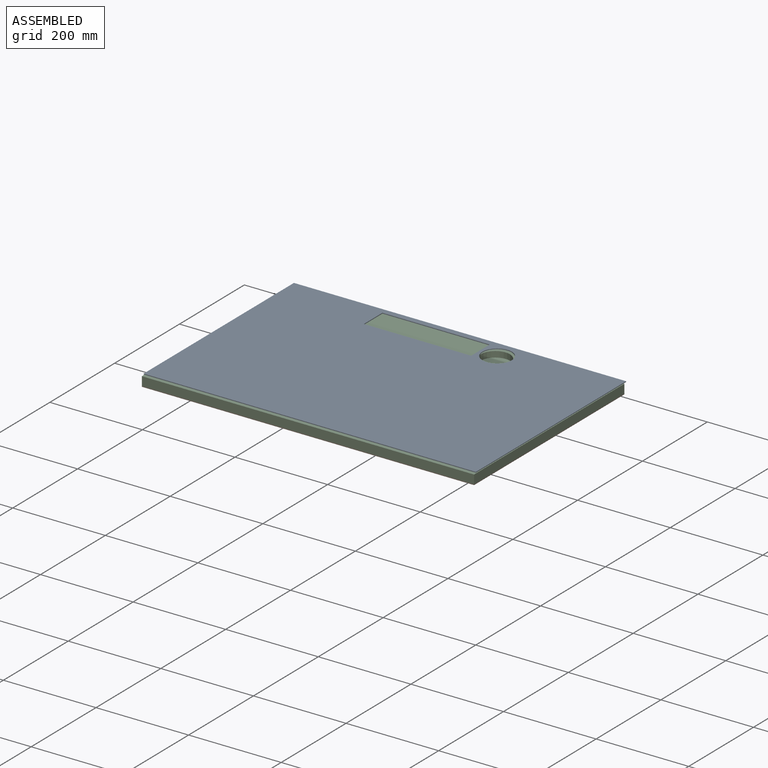
[diagram: assembled view]
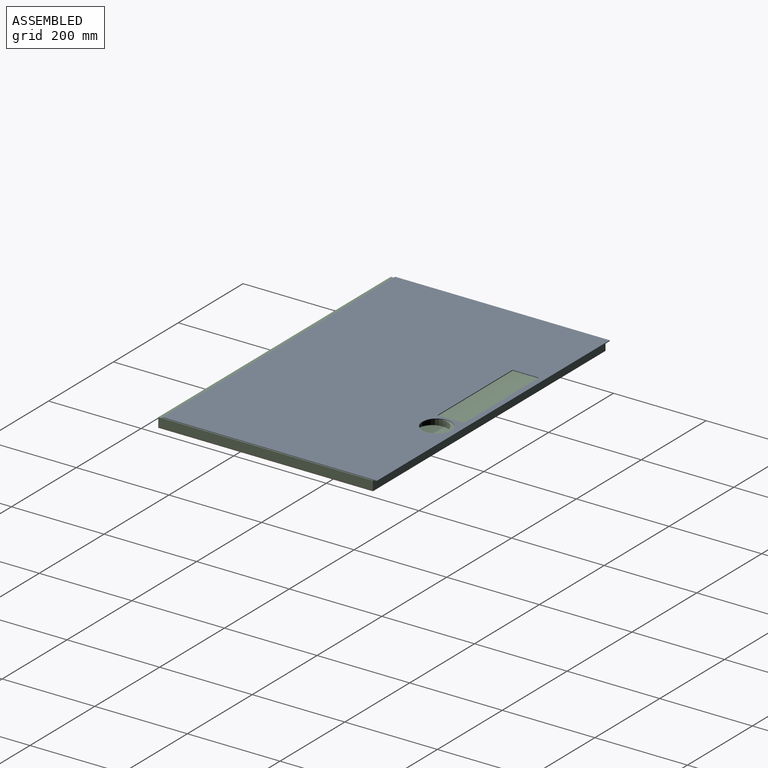
[diagram: assembled view, second angle]
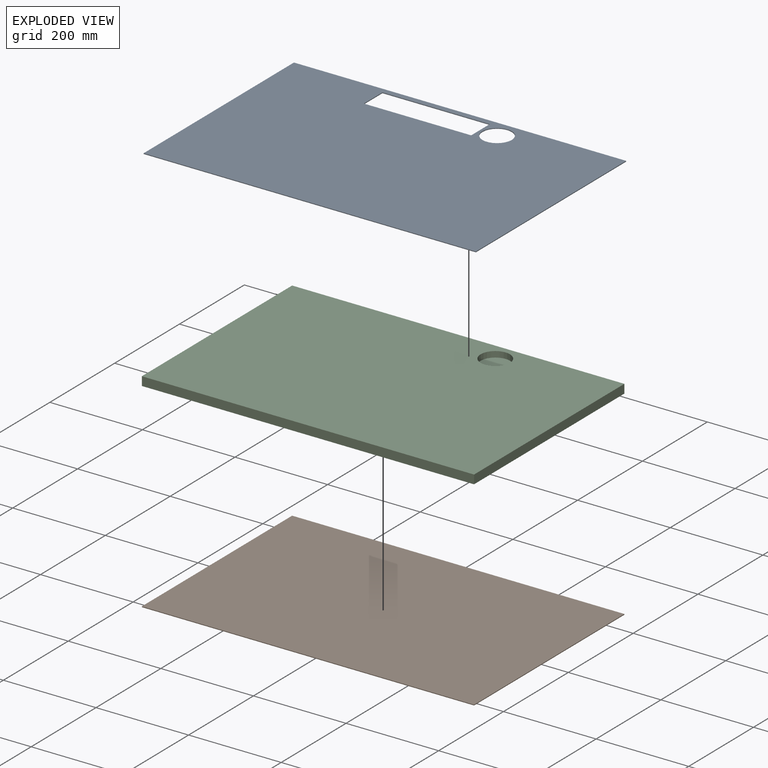
[diagram: exploded view]
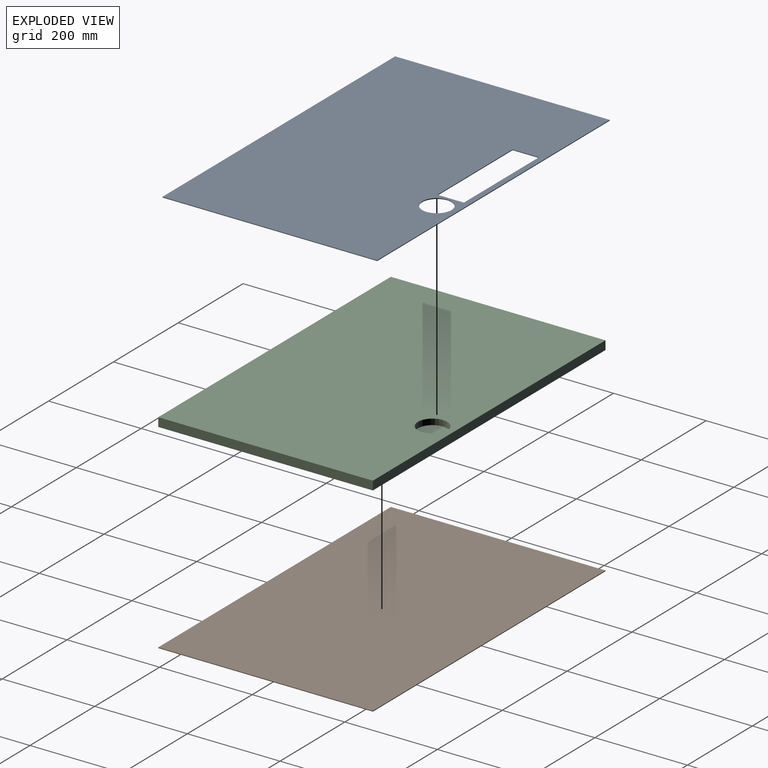
[diagram: exploded view, second angle]
ASSEMBLY  parts=3 mates=2
PART A: 11 faces, bbox 717.6x463.6x1.6 mm
  f0: plane 717.55x463.55mm, normal (0,0,1), area 316207.4mm2, adj f2,f3,f4,f5,f6,f7,f8,f9
  f1: plane 717.55x463.55mm, normal (0,0,-1), area 316207.4mm2, adj f2,f3,f4,f5,f6,f7,f8,f9
  f2: plane 717.55x1.59mm, normal (0,-1,0), area 1139.1mm2, adj f0,f1,f3,f5
  f3: plane 463.55x1.59mm, normal (1,0,0), area 735.9mm2, adj f0,f1,f2,f4
  f4: plane 717.55x1.59mm, normal (0,1,0), area 1139.1mm2, adj f0,f1,f3,f5
  f5: plane 463.55x1.59mm, normal (-1,0,0), area 735.9mm2, adj f0,f1,f2,f4
  f6: plane 57.15x1.59mm, normal (-1,0,0), area 90.7mm2, adj f0,f1,f7,f9
  f7: plane 231.78x1.59mm, normal (0,-1,0), area 367.9mm2, adj f0,f1,f6,f8
  f8: plane 57.15x1.59mm, normal (1,0,0), area 90.7mm2, adj f0,f1,f7,f9
  f9: plane 231.78x1.59mm, normal (0,1,0), area 367.9mm2, adj f0,f1,f6,f8
  f10: cylinder r=31.75mm len=63.5mm, axis (0,0,1), area 316.7mm2, adj f0,f1
PART B: 6 faces, bbox 717.6x463.6x1.6 mm
  f0: plane 717.55x1.59mm, normal (0,-1,0), area 1139.1mm2, adj f1,f3,f4,f5
  f1: plane 463.55x1.59mm, normal (1,0,0), area 735.9mm2, adj f0,f2,f4,f5
  f2: plane 717.55x1.59mm, normal (0,1,0), area 1139.1mm2, adj f1,f3,f4,f5
  f3: plane 463.55x1.59mm, normal (-1,0,0), area 735.9mm2, adj f0,f2,f4,f5
  f4: plane 717.55x463.55mm, normal (0,0,1), area 332620.3mm2, adj f0,f1,f2,f3
  f5: plane 717.55x463.55mm, normal (0,0,-1), area 332620.3mm2, adj f0,f1,f2,f3
PART C: 8 faces, bbox 717.6x463.6x19.1 mm
  f0: plane 717.55x19.05mm, normal (0,-1,0), area 13669.3mm2, adj f1,f3,f4,f5
  f1: plane 463.55x19.05mm, normal (1,0,0), area 8830.6mm2, adj f0,f2,f4,f5
  f2: plane 717.55x19.05mm, normal (0,1,0), area 13669.3mm2, adj f1,f3,f4,f5
  f3: plane 463.55x19.05mm, normal (-1,0,0), area 8830.6mm2, adj f0,f2,f4,f5
  f4: plane 717.55x463.55mm, normal (0,0,1), area 329453.4mm2, adj f0,f1,f2,f3,f6
  f5: plane 717.55x463.55mm, normal (0,0,-1), area 332620.3mm2, adj f0,f1,f2,f3
  f6: cylinder r=31.75mm len=63.5mm, axis (0,0,1), area 2533.5mm2, adj f4,f7
  f7: plane 63.5x63.5mm, normal (0,0,1), area 3166.9mm2, adj f6
PLACE A t=(-1.75,8.06,20.64)mm
PLACE B at identity
PLACE C t=(0,0,1.59)mm
MATE fastened B.f4 <-> C.f5  axis (0,0,1) through (0,0,1.59)mm
MATE fastened A.f1 <-> C.f4  axis (0,0,-1) through (-1.07,-1.8,20.64)mm
